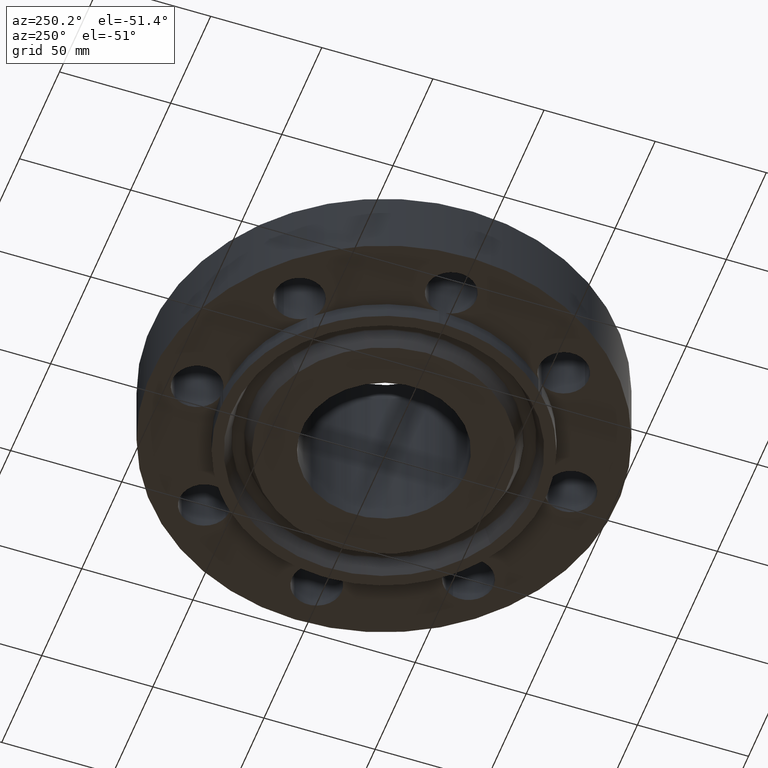
[diagram: clean part render]
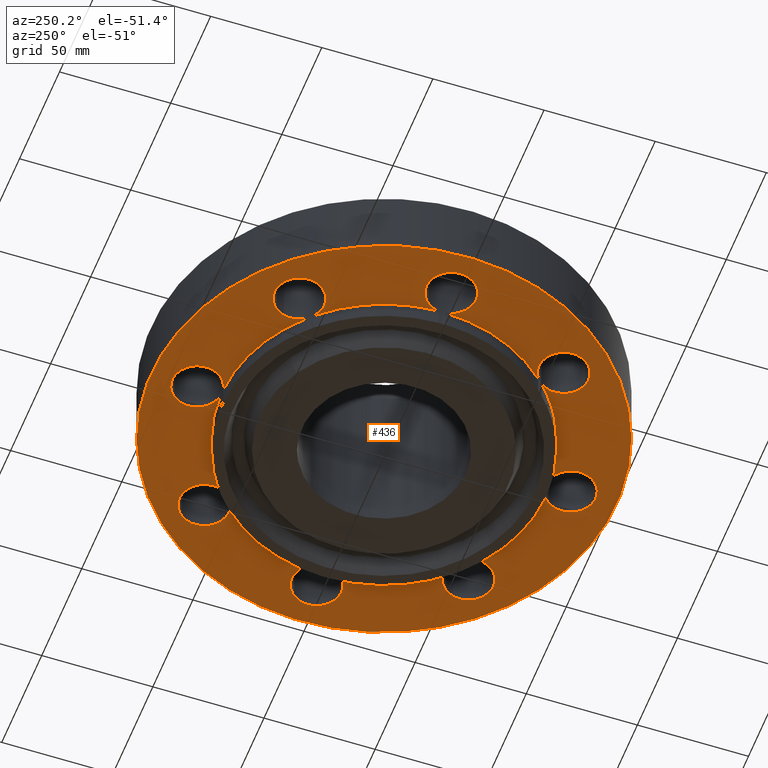
[diagram: same view with one face highlighted and labeled with its STEP entity id]
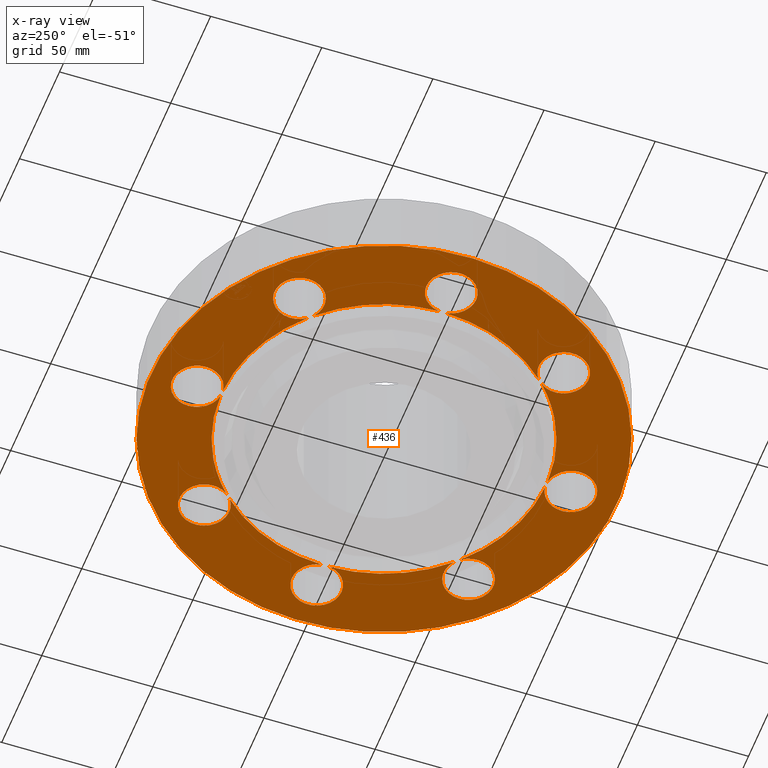
[diagram: x-ray of the same camera — body ghosted, the highlighted face saturated]
A machine part, auxiliary view. The second image highlights one B-rep face of the part: STEP entity #436.
The next image is the same camera in x-ray: the body ghosted, the highlighted face saturated — about 0% of this face is hidden behind the body in this view.
In plain terms, the highlighted planar face has unit normal (0, 0, -1).
Its self-contained STEP definition (entity closure, byte-faithful):
#51=AXIS2_PLACEMENT_3D('Circle Axis2P3D',#49,#50,$) ;
#90=AXIS2_PLACEMENT_3D('Circle Axis2P3D',#88,#89,$) ;
#165=AXIS2_PLACEMENT_3D('Plane Axis2P3D',#162,#163,#164) ;
#169=AXIS2_PLACEMENT_3D('Circle Axis2P3D',#167,#168,$) ;
#178=AXIS2_PLACEMENT_3D('Circle Axis2P3D',#176,#177,$) ;
#187=AXIS2_PLACEMENT_3D('Circle Axis2P3D',#185,#186,$) ;
#196=AXIS2_PLACEMENT_3D('Circle Axis2P3D',#194,#195,$) ;
#203=AXIS2_PLACEMENT_3D('Circle Axis2P3D',#201,#202,$) ;
#210=AXIS2_PLACEMENT_3D('Circle Axis2P3D',#208,#209,$) ;
#217=AXIS2_PLACEMENT_3D('Circle Axis2P3D',#215,#216,$) ;
#224=AXIS2_PLACEMENT_3D('Circle Axis2P3D',#222,#223,$) ;
#231=AXIS2_PLACEMENT_3D('Circle Axis2P3D',#229,#230,$) ;
#238=AXIS2_PLACEMENT_3D('Circle Axis2P3D',#236,#237,$) ;
#245=AXIS2_PLACEMENT_3D('Circle Axis2P3D',#243,#244,$) ;
#252=AXIS2_PLACEMENT_3D('Circle Axis2P3D',#250,#251,$) ;
#257=AXIS2_PLACEMENT_3D('Circle Axis2P3D',#255,#256,$) ;
#264=AXIS2_PLACEMENT_3D('Circle Axis2P3D',#262,#263,$) ;
#271=AXIS2_PLACEMENT_3D('Circle Axis2P3D',#269,#270,$) ;
#278=AXIS2_PLACEMENT_3D('Circle Axis2P3D',#276,#277,$) ;
#285=AXIS2_PLACEMENT_3D('Circle Axis2P3D',#283,#284,$) ;
#292=AXIS2_PLACEMENT_3D('Circle Axis2P3D',#290,#291,$) ;
#299=AXIS2_PLACEMENT_3D('Circle Axis2P3D',#297,#298,$) ;
#306=AXIS2_PLACEMENT_3D('Circle Axis2P3D',#304,#305,$) ;
#313=AXIS2_PLACEMENT_3D('Circle Axis2P3D',#311,#312,$) ;
#320=AXIS2_PLACEMENT_3D('Circle Axis2P3D',#318,#319,$) ;
#327=AXIS2_PLACEMENT_3D('Circle Axis2P3D',#325,#326,$) ;
#334=AXIS2_PLACEMENT_3D('Circle Axis2P3D',#332,#333,$) ;
#341=AXIS2_PLACEMENT_3D('Circle Axis2P3D',#339,#340,$) ;
#348=AXIS2_PLACEMENT_3D('Circle Axis2P3D',#346,#347,$) ;
#355=AXIS2_PLACEMENT_3D('Circle Axis2P3D',#353,#354,$) ;
#362=AXIS2_PLACEMENT_3D('Circle Axis2P3D',#360,#361,$) ;
#369=AXIS2_PLACEMENT_3D('Circle Axis2P3D',#367,#368,$) ;
#376=AXIS2_PLACEMENT_3D('Circle Axis2P3D',#374,#375,$) ;
#383=AXIS2_PLACEMENT_3D('Circle Axis2P3D',#381,#382,$) ;
#390=AXIS2_PLACEMENT_3D('Circle Axis2P3D',#388,#389,$) ;
#397=AXIS2_PLACEMENT_3D('Circle Axis2P3D',#395,#396,$) ;
#44=CARTESIAN_POINT('Vertex',(-0.386136327232,3.520947237,-1.06511475055E-011)) ;
#49=CARTESIAN_POINT('Axis2P3D Location',(0.,3.31000000001,-1.06511475055E-011)) ;
#53=CARTESIAN_POINT('Vertex',(0.386136327233,3.09905276302,-1.06511475055E-011)) ;
#88=CARTESIAN_POINT('Axis2P3D Location',(0.,3.31000000001,-1.06511475055E-011)) ;
#92=CARTESIAN_POINT('Vertex',(0.0616409036858,2.87433912388,-1.06511475055E-011)) ;
#113=CARTESIAN_POINT('Vertex',(-0.0616409037057,2.8743391239,0.)) ;
#117=CARTESIAN_POINT('Control Point',(-0.0616409036858,2.87433912388,-1.06511475055E-011)) ;
#118=CARTESIAN_POINT('Control Point',(-0.145733953248,2.88623730398,-9.58604674205E-012)) ;
#119=CARTESIAN_POINT('Control Point',(-0.226956208391,2.91842546584,-8.52094597855E-012)) ;
#120=CARTESIAN_POINT('Control Point',(-0.298754628234,2.97002145886,-7.45591515037E-012)) ;
#121=CARTESIAN_POINT('Control Point',(-0.411572852387,3.10345525622,-5.32571362339E-012)) ;
#122=CARTESIAN_POINT('Control Point',(-0.45113050011,3.27365432345,-3.1955120964E-012)) ;
#123=CARTESIAN_POINT('Control Point',(-0.449588648493,3.36205558069,-2.13048126822E-012)) ;
#124=CARTESIAN_POINT('Control Point',(-0.426854228304,3.44641361903,-1.06538050473E-012)) ;
#125=CARTESIAN_POINT('Control Point',(-0.386136327233,3.520947237,-2.79741234551E-016)) ;
#162=CARTESIAN_POINT('Axis2P3D Location',(0.,2.87500000001,0.)) ;
#167=CARTESIAN_POINT('Axis2P3D Location',(1.1189649382E-015,-4.66552430985E-012,0.)) ;
#171=CARTESIAN_POINT('Vertex',(-1.97763034678,-3.62002806782,0.)) ;
#173=CARTESIAN_POINT('Vertex',(1.97763034675,3.62002806781,-2.60212498967E-011)) ;
#176=CARTESIAN_POINT('Axis2P3D Location',(-1.1189649382E-015,-4.66664327478E-012,0.)) ;
#185=CARTESIAN_POINT('Axis2P3D Location',(-1.10624230686E-010,5.93213667165E-011,0.)) ;
#189=CARTESIAN_POINT('Vertex',(2.87433912388,-0.061640903685,-2.60212498967E-011)) ;
#191=CARTESIAN_POINT('Vertex',(2.07605138692,-1.98887798493,-2.60212498967E-011)) ;
#194=CARTESIAN_POINT('Axis2P3D Location',(3.30999999995,-9.51495050728E-011,0.)) ;
#198=CARTESIAN_POINT('Vertex',(3.09905276304,-0.386136327252,0.)) ;
#201=CARTESIAN_POINT('Axis2P3D Location',(3.30999999999,2.33304189616E-012,0.)) ;
#205=CARTESIAN_POINT('Vertex',(3.52094723696,0.386136327242,0.)) ;
#208=CARTESIAN_POINT('Axis2P3D Location',(3.31000000003,-8.18746645285E-012,0.)) ;
#212=CARTESIAN_POINT('Vertex',(2.87433912388,0.061640903685,-2.60212498967E-011)) ;
#215=CARTESIAN_POINT('Axis2P3D Location',(-1.10625069909E-010,-6.86540937836E-011,0.)) ;
#219=CARTESIAN_POINT('Vertex',(2.07605138692,1.98887798493,-2.60212498967E-011)) ;
#222=CARTESIAN_POINT('Axis2P3D Location',(2.3405234457,2.34052344543,0.)) ;
#226=CARTESIAN_POINT('Vertex',(2.46440083947,1.91832160855,0.)) ;
#229=CARTESIAN_POINT('Axis2P3D Location',(2.34052344574,2.34052344573,0.)) ;
#233=CARTESIAN_POINT('Vertex',(2.216646052,2.76272528291,0.)) ;
#236=CARTESIAN_POINT('Axis2P3D Location',(2.34052344571,2.34052344575,0.)) ;
#240=CARTESIAN_POINT('Vertex',(1.98887798493,2.07605138692,-2.60212498967E-011)) ;
#243=CARTESIAN_POINT('Axis2P3D Location',(1.14782136551E-009,1.35165425659E-009,0.)) ;
#247=CARTESIAN_POINT('Vertex',(1.37834842349,2.52304986544,-2.60212498967E-011)) ;
#250=CARTESIAN_POINT('Axis2P3D Location',(-3.52003640584E-010,-9.5536778838E-010,0.)) ;
#255=CARTESIAN_POINT('Axis2P3D Location',(6.398773025E-011,-1.15291433443E-010,0.)) ;
#259=CARTESIAN_POINT('Vertex',(-1.98887798493,2.07605138692,-2.60212498967E-011)) ;
#262=CARTESIAN_POINT('Axis2P3D Location',(-2.34052344544,2.34052344569,0.)) ;
#266=CARTESIAN_POINT('Vertex',(-1.91832160856,2.46440083947,0.)) ;
#269=CARTESIAN_POINT('Axis2P3D Location',(-2.34052344574,2.34052344573,0.)) ;
#273=CARTESIAN_POINT('Vertex',(-2.76272528292,2.216646052,0.)) ;
#276=CARTESIAN_POINT('Axis2P3D Location',(-2.34052344575,2.34052344571,0.)) ;
#280=CARTESIAN_POINT('Vertex',(-2.07605138692,1.98887798493,-2.60212498967E-011)) ;
#283=CARTESIAN_POINT('Axis2P3D Location',(1.10624230686E-010,-6.86535343011E-011,0.)) ;
#287=CARTESIAN_POINT('Vertex',(-2.87433912388,0.061640903685,-2.60212498967E-011)) ;
#290=CARTESIAN_POINT('Axis2P3D Location',(-3.30999999995,8.58173374882E-011,0.)) ;
#294=CARTESIAN_POINT('Vertex',(-3.09905276304,0.386136327242,0.)) ;
#297=CARTESIAN_POINT('Axis2P3D Location',(-3.30999999999,-1.16652094808E-011,0.)) ;
#301=CARTESIAN_POINT('Vertex',(-3.52094723696,-0.386136327252,0.)) ;
#304=CARTESIAN_POINT('Axis2P3D Location',(-3.31000000003,-1.14470113178E-012,0.)) ;
#308=CARTESIAN_POINT('Vertex',(-2.87433912388,-0.061640903685,-2.60212498967E-011)) ;
#311=CARTESIAN_POINT('Axis2P3D Location',(1.10625069909E-010,5.93219261989E-011,0.)) ;
#315=CARTESIAN_POINT('Vertex',(-2.07605138692,-1.98887798493,-2.60212498967E-011)) ;
#318=CARTESIAN_POINT('Axis2P3D Location',(-2.3405234457,-2.34052344544,0.)) ;
#322=CARTESIAN_POINT('Vertex',(-2.46440083947,-1.91832160856,0.)) ;
#325=CARTESIAN_POINT('Axis2P3D Location',(-2.34052344574,-2.34052344574,0.)) ;
#329=CARTESIAN_POINT('Vertex',(-2.216646052,-2.76272528292,0.)) ;
#332=CARTESIAN_POINT('Axis2P3D Location',(-2.34052344571,-2.34052344576,0.)) ;
#336=CARTESIAN_POINT('Vertex',(-1.98887798495,-2.07605138693,0.)) ;
#339=CARTESIAN_POINT('Axis2P3D Location',(-1.14782136551E-009,-1.36098642417E-009,0.)) ;
#343=CARTESIAN_POINT('Vertex',(-1.37834842349,-2.52304986544,-2.60212498967E-011)) ;
#346=CARTESIAN_POINT('Axis2P3D Location',(-1.29110930171E-010,-2.57259550495E-010,0.)) ;
#350=CARTESIAN_POINT('Vertex',(-0.061640903685,-2.87433912388,-2.60212498967E-011)) ;
#353=CARTESIAN_POINT('Axis2P3D Location',(1.70622780996E-010,-3.31000000019,0.)) ;
#357=CARTESIAN_POINT('Vertex',(-0.386136327247,-3.09905276304,0.)) ;
#360=CARTESIAN_POINT('Axis2P3D Location',(6.99907323699E-012,-3.30999999999,0.)) ;
#364=CARTESIAN_POINT('Vertex',(0.386136327247,-3.52094723697,0.)) ;
#367=CARTESIAN_POINT('Axis2P3D Location',(-9.86692792213E-011,-3.31000000003,0.)) ;
#371=CARTESIAN_POINT('Vertex',(0.061640903685,-2.87433912388,-2.60212498967E-011)) ;
#374=CARTESIAN_POINT('Axis2P3D Location',(2.35276365319E-010,-3.52486264149E-010,0.)) ;
#378=CARTESIAN_POINT('Vertex',(1.98887798493,-2.07605138692,-2.60212498967E-011)) ;
#381=CARTESIAN_POINT('Axis2P3D Location',(2.34052344535,-2.34052344566,0.)) ;
#385=CARTESIAN_POINT('Vertex',(1.91832160856,-2.4644008394,0.)) ;
#388=CARTESIAN_POINT('Axis2P3D Location',(2.34052344575,-2.34052344575,0.)) ;
#392=CARTESIAN_POINT('Vertex',(2.76272528292,-2.21664605201,0.)) ;
#395=CARTESIAN_POINT('Axis2P3D Location',(2.34052344575,-2.34052344572,0.)) ;
#50=DIRECTION('Axis2P3D Direction',(0.,-0.,-0.0393700787402)) ;
#89=DIRECTION('Axis2P3D Direction',(0.,-0.,-0.0393700787402)) ;
#163=DIRECTION('Axis2P3D Direction',(0.,0.,-0.0393700787402)) ;
#164=DIRECTION('Axis2P3D XDirection',(0.0393700787402,0.,0.)) ;
#168=DIRECTION('Axis2P3D Direction',(0.,0.,-0.0393700787402)) ;
#177=DIRECTION('Axis2P3D Direction',(0.,0.,-0.0393700787402)) ;
#186=DIRECTION('Axis2P3D Direction',(0.,0.,-0.0393700787402)) ;
#195=DIRECTION('Axis2P3D Direction',(0.,0.,-0.0393700787402)) ;
#202=DIRECTION('Axis2P3D Direction',(0.,0.,-0.0393700787402)) ;
#209=DIRECTION('Axis2P3D Direction',(0.,0.,-0.0393700787402)) ;
#216=DIRECTION('Axis2P3D Direction',(0.,0.,-0.0393700787402)) ;
#223=DIRECTION('Axis2P3D Direction',(0.,0.,-0.0393700787402)) ;
#230=DIRECTION('Axis2P3D Direction',(0.,0.,-0.0393700787402)) ;
#237=DIRECTION('Axis2P3D Direction',(0.,0.,-0.0393700787402)) ;
#244=DIRECTION('Axis2P3D Direction',(0.,0.,-0.0393700787402)) ;
#251=DIRECTION('Axis2P3D Direction',(0.,0.,-0.0393700787402)) ;
#256=DIRECTION('Axis2P3D Direction',(0.,0.,-0.0393700787402)) ;
#263=DIRECTION('Axis2P3D Direction',(0.,0.,-0.0393700787402)) ;
#270=DIRECTION('Axis2P3D Direction',(0.,0.,-0.0393700787402)) ;
#277=DIRECTION('Axis2P3D Direction',(0.,0.,-0.0393700787402)) ;
#284=DIRECTION('Axis2P3D Direction',(0.,0.,-0.0393700787402)) ;
#291=DIRECTION('Axis2P3D Direction',(0.,0.,-0.0393700787402)) ;
#298=DIRECTION('Axis2P3D Direction',(0.,0.,-0.0393700787402)) ;
#305=DIRECTION('Axis2P3D Direction',(0.,0.,-0.0393700787402)) ;
#312=DIRECTION('Axis2P3D Direction',(0.,0.,-0.0393700787402)) ;
#319=DIRECTION('Axis2P3D Direction',(0.,0.,-0.0393700787402)) ;
#326=DIRECTION('Axis2P3D Direction',(0.,0.,-0.0393700787402)) ;
#333=DIRECTION('Axis2P3D Direction',(0.,0.,-0.0393700787402)) ;
#340=DIRECTION('Axis2P3D Direction',(0.,0.,-0.0393700787402)) ;
#347=DIRECTION('Axis2P3D Direction',(0.,0.,-0.0393700787402)) ;
#354=DIRECTION('Axis2P3D Direction',(0.,0.,-0.0393700787402)) ;
#361=DIRECTION('Axis2P3D Direction',(0.,0.,-0.0393700787402)) ;
#368=DIRECTION('Axis2P3D Direction',(0.,0.,-0.0393700787402)) ;
#375=DIRECTION('Axis2P3D Direction',(0.,0.,-0.0393700787402)) ;
#382=DIRECTION('Axis2P3D Direction',(0.,0.,-0.0393700787402)) ;
#389=DIRECTION('Axis2P3D Direction',(0.,0.,-0.0393700787402)) ;
#396=DIRECTION('Axis2P3D Direction',(0.,0.,-0.0393700787402)) ;
#182=ORIENTED_EDGE('',*,*,#175,.T.) ;
#183=ORIENTED_EDGE('',*,*,#180,.T.) ;
#401=ORIENTED_EDGE('',*,*,#193,.F.) ;
#402=ORIENTED_EDGE('',*,*,#200,.F.) ;
#403=ORIENTED_EDGE('',*,*,#207,.F.) ;
#404=ORIENTED_EDGE('',*,*,#214,.F.) ;
#405=ORIENTED_EDGE('',*,*,#221,.F.) ;
#406=ORIENTED_EDGE('',*,*,#228,.F.) ;
#407=ORIENTED_EDGE('',*,*,#235,.F.) ;
#408=ORIENTED_EDGE('',*,*,#242,.F.) ;
#409=ORIENTED_EDGE('',*,*,#249,.F.) ;
#410=ORIENTED_EDGE('',*,*,#254,.F.) ;
#411=ORIENTED_EDGE('',*,*,#94,.F.) ;
#412=ORIENTED_EDGE('',*,*,#55,.F.) ;
#413=ORIENTED_EDGE('',*,*,#126,.F.) ;
#414=ORIENTED_EDGE('',*,*,#261,.F.) ;
#415=ORIENTED_EDGE('',*,*,#268,.F.) ;
#416=ORIENTED_EDGE('',*,*,#275,.F.) ;
#417=ORIENTED_EDGE('',*,*,#282,.F.) ;
#418=ORIENTED_EDGE('',*,*,#289,.F.) ;
#419=ORIENTED_EDGE('',*,*,#296,.F.) ;
#420=ORIENTED_EDGE('',*,*,#303,.F.) ;
#421=ORIENTED_EDGE('',*,*,#310,.F.) ;
#422=ORIENTED_EDGE('',*,*,#317,.F.) ;
#423=ORIENTED_EDGE('',*,*,#324,.F.) ;
#424=ORIENTED_EDGE('',*,*,#331,.F.) ;
#425=ORIENTED_EDGE('',*,*,#338,.F.) ;
#426=ORIENTED_EDGE('',*,*,#345,.F.) ;
#427=ORIENTED_EDGE('',*,*,#352,.F.) ;
#428=ORIENTED_EDGE('',*,*,#359,.F.) ;
#429=ORIENTED_EDGE('',*,*,#366,.F.) ;
#430=ORIENTED_EDGE('',*,*,#373,.F.) ;
#431=ORIENTED_EDGE('',*,*,#380,.F.) ;
#432=ORIENTED_EDGE('',*,*,#387,.F.) ;
#433=ORIENTED_EDGE('',*,*,#394,.F.) ;
#434=ORIENTED_EDGE('',*,*,#399,.F.) ;
#435=FACE_BOUND('',#400,.T.) ;
#436=ADVANCED_FACE('PartBody',(#184,#435),#166,.T.) ;
#116=B_SPLINE_CURVE_WITH_KNOTS('',5,(#117,#118,#119,#120,#121,#122,#123,#124,#125),.UNSPECIFIED.,.F.,.U.,(6,3,6),(-10.7861868415,-8.881784197E-016,10.7861868415),.UNSPECIFIED.) ;
#52=CIRCLE('generated circle',#51,0.440000000002) ;
#91=CIRCLE('generated circle',#90,0.440000000002) ;
#170=CIRCLE('generated circle',#169,4.12500000004) ;
#179=CIRCLE('generated circle',#178,4.12500000004) ;
#188=CIRCLE('generated circle',#187,2.87500000015) ;
#197=CIRCLE('generated circle',#196,0.439999999898) ;
#204=CIRCLE('generated circle',#203,0.440000000002) ;
#211=CIRCLE('generated circle',#210,0.439999999991) ;
#218=CIRCLE('generated circle',#217,2.87500000015) ;
#225=CIRCLE('generated circle',#224,0.43999999972) ;
#232=CIRCLE('generated circle',#231,0.439999999995) ;
#239=CIRCLE('generated circle',#238,0.439999999973) ;
#246=CIRCLE('generated circle',#245,2.87499999826) ;
#253=CIRCLE('generated circle',#252,2.875000001) ;
#258=CIRCLE('generated circle',#257,2.87500000015) ;
#265=CIRCLE('generated circle',#264,0.43999999972) ;
#272=CIRCLE('generated circle',#271,0.439999999995) ;
#279=CIRCLE('generated circle',#278,0.439999999973) ;
#286=CIRCLE('generated circle',#285,2.87500000015) ;
#293=CIRCLE('generated circle',#292,0.439999999898) ;
#300=CIRCLE('generated circle',#299,0.440000000002) ;
#307=CIRCLE('generated circle',#306,0.439999999991) ;
#314=CIRCLE('generated circle',#313,2.87500000015) ;
#321=CIRCLE('generated circle',#320,0.43999999972) ;
#328=CIRCLE('generated circle',#327,0.439999999995) ;
#335=CIRCLE('generated circle',#334,0.439999999973) ;
#342=CIRCLE('generated circle',#341,2.87499999826) ;
#349=CIRCLE('generated circle',#348,2.87499999971) ;
#356=CIRCLE('generated circle',#355,0.44000000024) ;
#363=CIRCLE('generated circle',#362,0.440000000002) ;
#370=CIRCLE('generated circle',#369,0.440000000076) ;
#377=CIRCLE('generated circle',#376,2.87499999962) ;
#384=CIRCLE('generated circle',#383,0.439999999623) ;
#391=CIRCLE('generated circle',#390,0.439999999984) ;
#398=CIRCLE('generated circle',#397,0.439999999973) ;
#55=EDGE_CURVE('',#45,#54,#52,.T.) ;
#94=EDGE_CURVE('',#54,#93,#91,.T.) ;
#126=EDGE_CURVE('',#114,#45,#116,.T.) ;
#175=EDGE_CURVE('',#172,#174,#170,.T.) ;
#180=EDGE_CURVE('',#174,#172,#179,.T.) ;
#193=EDGE_CURVE('',#190,#192,#188,.T.) ;
#200=EDGE_CURVE('',#199,#190,#197,.T.) ;
#207=EDGE_CURVE('',#206,#199,#204,.T.) ;
#214=EDGE_CURVE('',#213,#206,#211,.T.) ;
#221=EDGE_CURVE('',#220,#213,#218,.T.) ;
#228=EDGE_CURVE('',#227,#220,#225,.T.) ;
#235=EDGE_CURVE('',#234,#227,#232,.T.) ;
#242=EDGE_CURVE('',#241,#234,#239,.T.) ;
#249=EDGE_CURVE('',#248,#241,#246,.T.) ;
#254=EDGE_CURVE('',#93,#248,#253,.T.) ;
#261=EDGE_CURVE('',#260,#114,#258,.T.) ;
#268=EDGE_CURVE('',#267,#260,#265,.T.) ;
#275=EDGE_CURVE('',#274,#267,#272,.T.) ;
#282=EDGE_CURVE('',#281,#274,#279,.T.) ;
#289=EDGE_CURVE('',#288,#281,#286,.T.) ;
#296=EDGE_CURVE('',#295,#288,#293,.T.) ;
#303=EDGE_CURVE('',#302,#295,#300,.T.) ;
#310=EDGE_CURVE('',#309,#302,#307,.T.) ;
#317=EDGE_CURVE('',#316,#309,#314,.T.) ;
#324=EDGE_CURVE('',#323,#316,#321,.T.) ;
#331=EDGE_CURVE('',#330,#323,#328,.T.) ;
#338=EDGE_CURVE('',#337,#330,#335,.T.) ;
#345=EDGE_CURVE('',#344,#337,#342,.T.) ;
#352=EDGE_CURVE('',#351,#344,#349,.T.) ;
#359=EDGE_CURVE('',#358,#351,#356,.T.) ;
#366=EDGE_CURVE('',#365,#358,#363,.T.) ;
#373=EDGE_CURVE('',#372,#365,#370,.T.) ;
#380=EDGE_CURVE('',#379,#372,#377,.T.) ;
#387=EDGE_CURVE('',#386,#379,#384,.T.) ;
#394=EDGE_CURVE('',#393,#386,#391,.T.) ;
#399=EDGE_CURVE('',#192,#393,#398,.T.) ;
#181=EDGE_LOOP('',(#182,#183)) ;
#400=EDGE_LOOP('',(#401,#402,#403,#404,#405,#406,#407,#408,#409,#410,#411,#412,#413,#414,#415,#416,#417,#418,#419,#420,#421,#422,#423,#424,#425,#426,#427,#428,#429,#430,#431,#432,#433,#434)) ;
#184=FACE_OUTER_BOUND('',#181,.T.) ;
#166=PLANE('',#165) ;
#45=VERTEX_POINT('',#44) ;
#54=VERTEX_POINT('',#53) ;
#93=VERTEX_POINT('',#92) ;
#114=VERTEX_POINT('',#113) ;
#172=VERTEX_POINT('',#171) ;
#174=VERTEX_POINT('',#173) ;
#190=VERTEX_POINT('',#189) ;
#192=VERTEX_POINT('',#191) ;
#199=VERTEX_POINT('',#198) ;
#206=VERTEX_POINT('',#205) ;
#213=VERTEX_POINT('',#212) ;
#220=VERTEX_POINT('',#219) ;
#227=VERTEX_POINT('',#226) ;
#234=VERTEX_POINT('',#233) ;
#241=VERTEX_POINT('',#240) ;
#248=VERTEX_POINT('',#247) ;
#260=VERTEX_POINT('',#259) ;
#267=VERTEX_POINT('',#266) ;
#274=VERTEX_POINT('',#273) ;
#281=VERTEX_POINT('',#280) ;
#288=VERTEX_POINT('',#287) ;
#295=VERTEX_POINT('',#294) ;
#302=VERTEX_POINT('',#301) ;
#309=VERTEX_POINT('',#308) ;
#316=VERTEX_POINT('',#315) ;
#323=VERTEX_POINT('',#322) ;
#330=VERTEX_POINT('',#329) ;
#337=VERTEX_POINT('',#336) ;
#344=VERTEX_POINT('',#343) ;
#351=VERTEX_POINT('',#350) ;
#358=VERTEX_POINT('',#357) ;
#365=VERTEX_POINT('',#364) ;
#372=VERTEX_POINT('',#371) ;
#379=VERTEX_POINT('',#378) ;
#386=VERTEX_POINT('',#385) ;
#393=VERTEX_POINT('',#392) ;